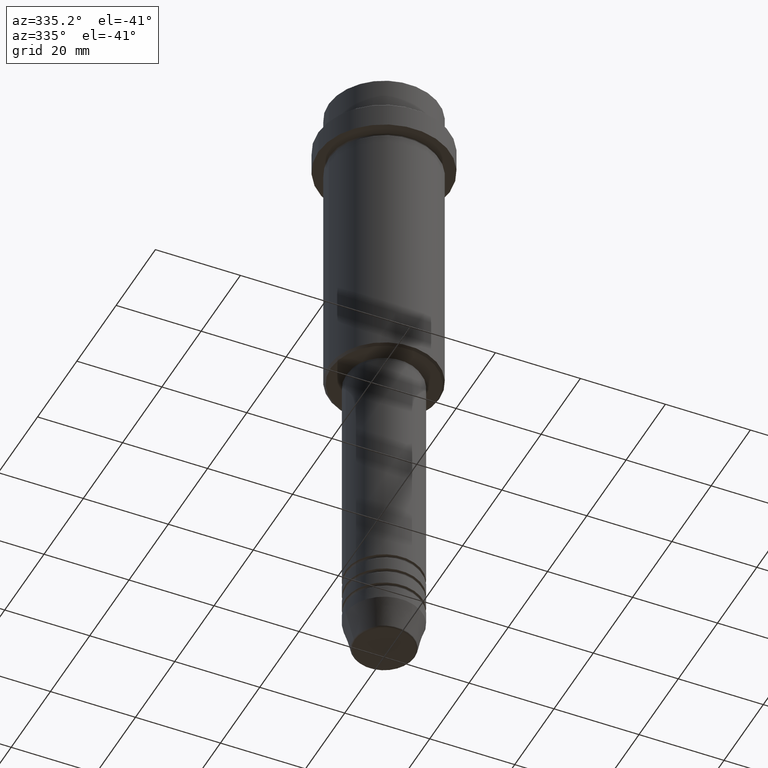
[diagram: clean part render]
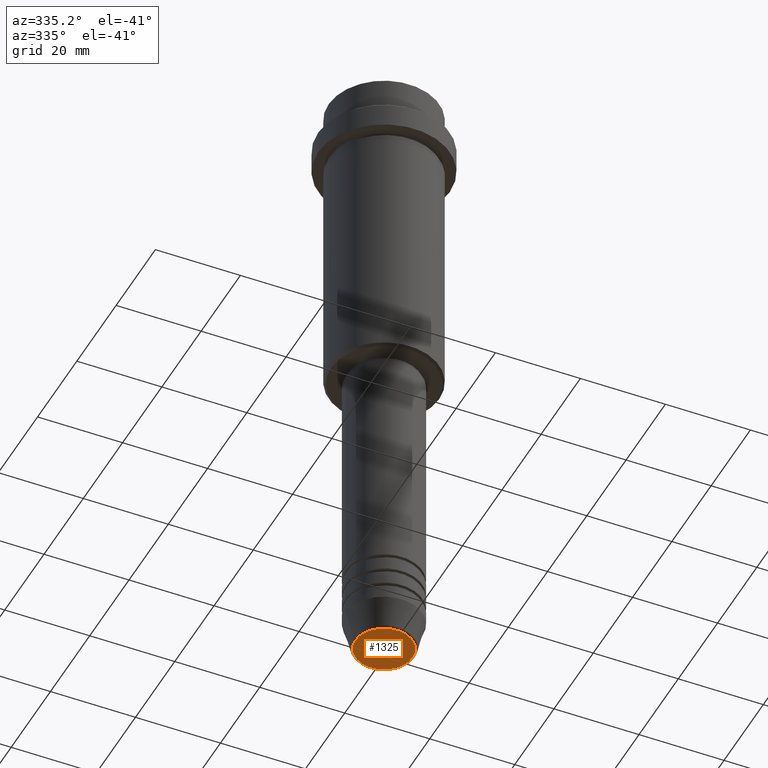
[diagram: same view with one face highlighted and labeled with its STEP entity id]
A machine part, auxiliary view. The second image highlights one B-rep face of the part: STEP entity #1325.
In plain terms, the highlighted planar face has unit normal (0, -0, 1).
Its self-contained STEP definition (entity closure, byte-faithful):
#90 = CARTESIAN_POINT ( 'NONE',  ( 0.000000000000000000, 0.000000000000000000, -150.0000000000000000 ) ) ;
#147 = CIRCLE ( 'NONE', #761, 6.740692158992658278 ) ;
#247 = DIRECTION ( 'NONE',  ( 1.000000000000000000, 0.000000000000000000, 0.000000000000000000 ) ) ;
#266 = EDGE_LOOP ( 'NONE', ( #721, #536 ) ) ;
#350 = CARTESIAN_POINT ( 'NONE',  ( 6.740692158992658278, 0.000000000000000000, -150.0000000000000000 ) ) ;
#484 = VERTEX_POINT ( 'NONE', #350 ) ;
#493 = DIRECTION ( 'NONE',  ( 1.000000000000000000, 0.000000000000000000, 0.000000000000000000 ) ) ;
#536 = ORIENTED_EDGE ( 'NONE', *, *, #1406, .T. ) ;
#638 = DIRECTION ( 'NONE',  ( 0.000000000000000000, -0.000000000000000000, 1.000000000000000000 ) ) ;
#656 = FACE_OUTER_BOUND ( 'NONE', #266, .T. ) ;
#721 = ORIENTED_EDGE ( 'NONE', *, *, #1183, .T. ) ;
#727 = CARTESIAN_POINT ( 'NONE',  ( -6.740692158992658278, 8.550696569392685681E-16, -150.0000000000000000 ) ) ;
#736 = VERTEX_POINT ( 'NONE', #727 ) ;
#761 = AXIS2_PLACEMENT_3D ( 'NONE', #847, #1058, #493 ) ;
#847 = CARTESIAN_POINT ( 'NONE',  ( 0.000000000000000000, 0.000000000000000000, -150.0000000000000000 ) ) ;
#1014 = AXIS2_PLACEMENT_3D ( 'NONE', #1218, #1233, #247 ) ;
#1058 = DIRECTION ( 'NONE',  ( 0.000000000000000000, 0.000000000000000000, -1.000000000000000000 ) ) ;
#1086 = DIRECTION ( 'NONE',  ( 1.000000000000000000, 0.000000000000000000, 0.000000000000000000 ) ) ;
#1102 = PLANE ( 'NONE',  #1169 ) ;
#1169 = AXIS2_PLACEMENT_3D ( 'NONE', #90, #638, #1086 ) ;
#1183 = EDGE_CURVE ( 'NONE', #484, #736, #147, .T. ) ;
#1218 = CARTESIAN_POINT ( 'NONE',  ( 0.000000000000000000, 0.000000000000000000, -150.0000000000000000 ) ) ;
#1233 = DIRECTION ( 'NONE',  ( 0.000000000000000000, 0.000000000000000000, -1.000000000000000000 ) ) ;
#1240 = CIRCLE ( 'NONE', #1014, 6.740692158992658278 ) ;
#1325 = ADVANCED_FACE ( 'NONE', ( #656 ), #1102, .F. ) ;
#1406 = EDGE_CURVE ( 'NONE', #736, #484, #1240, .T. ) ;